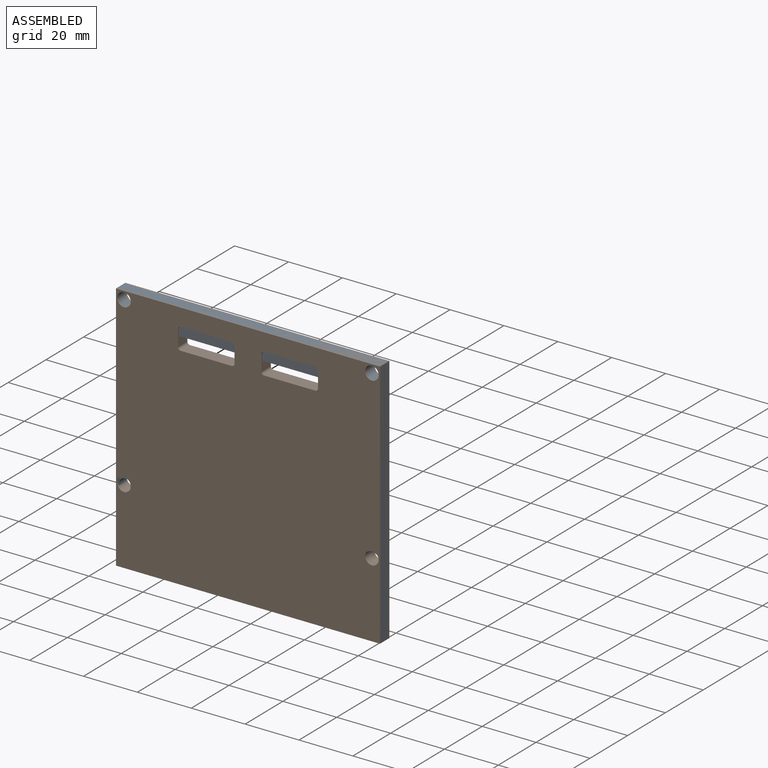
[diagram: assembled view]
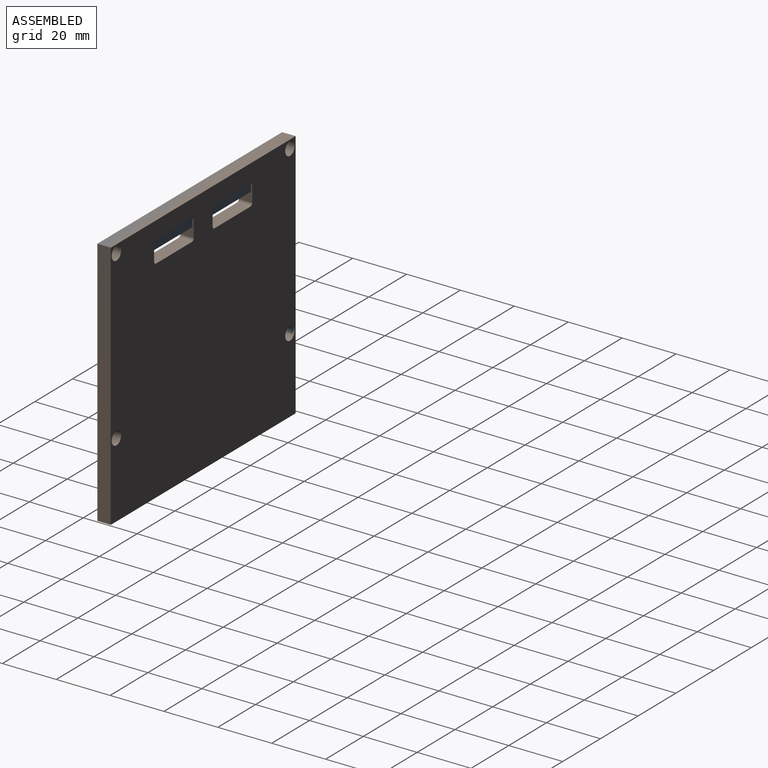
[diagram: assembled view, second angle]
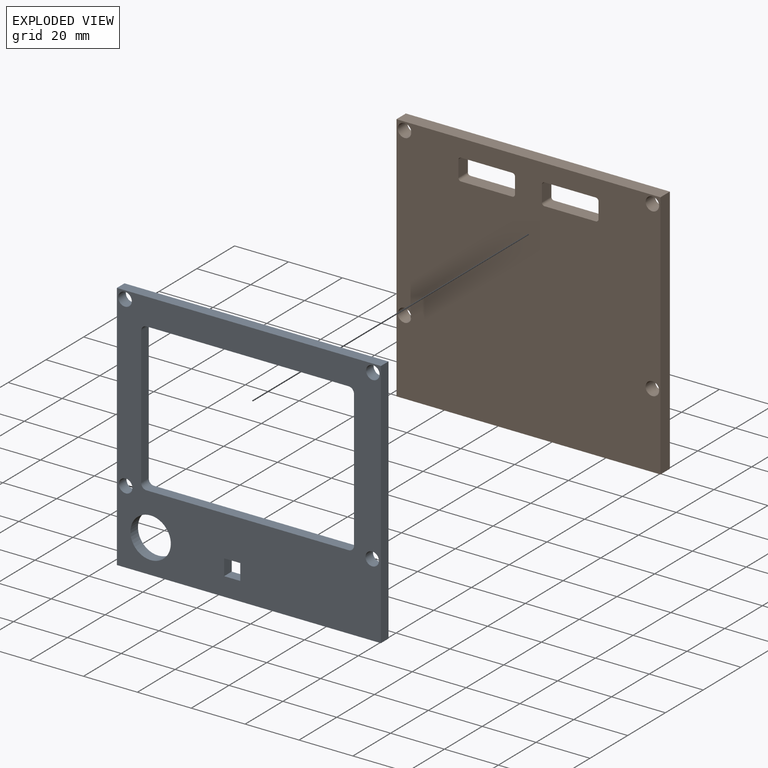
[diagram: exploded view]
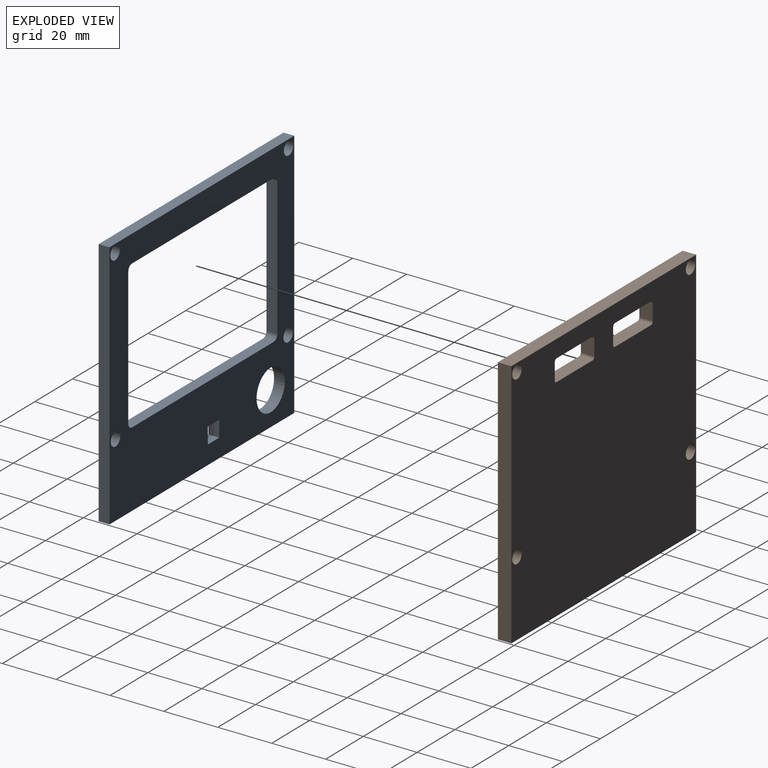
[diagram: exploded view, second angle]
ASSEMBLY  parts=2 mates=2
PART A: 23 faces, bbox 98x4x93 mm
  f0: plane 98x93mm, normal (0,-1,0), area 4481.2mm2, adj f2,f3,f4,f5,f6,f7,f8,f9
  f1: plane 98x93mm, normal (0,1,0), area 4481.2mm2, adj f2,f3,f4,f5,f6,f7,f8,f9
  f2: plane 98x4mm, normal (0,0,1), area 392mm2, adj f0,f1,f3,f5
  f3: plane 93x4mm, normal (-1,0,0), area 372mm2, adj f0,f1,f2,f4
  f4: plane 98x4mm, normal (0,0,-1), area 392mm2, adj f0,f1,f3,f5
  f5: plane 93x4mm, normal (1,0,0), area 372mm2, adj f0,f1,f2,f4
  f6: cylinder r=2.5mm len=5mm, axis (0,1,0), area 62.8mm2, adj f0,f1
  f7: cylinder r=2.5mm len=5mm, axis (0,1,0), area 62.8mm2, adj f0,f1
  f8: plane 75x4mm, normal (0,0,-1), area 300mm2, adj f0,f1,f17,f20
  f9: plane 51x4mm, normal (-1,0,0), area 204mm2, adj f0,f1,f17,f18
  f10: plane 75x4mm, normal (0,0,1), area 300mm2, adj f0,f1,f18,f19
  f11: plane 51x4mm, normal (1,0,0), area 204mm2, adj f0,f1,f19,f20
  f12: cylinder r=7.5mm len=15mm, axis (0,1,0), area 188.5mm2, adj f0,f1
  f13: plane 6x4mm, normal (1,0,0), area 24mm2, adj f0,f1,f14,f16
  f14: plane 6x4mm, normal (0,0,1), area 24mm2, adj f0,f1,f13,f15
  f15: plane 6x4mm, normal (-1,0,0), area 24mm2, adj f0,f1,f14,f16
  f16: plane 6x4mm, normal (0,0,-1), area 24mm2, adj f0,f1,f13,f15
  f17: cylinder r=2mm len=4mm, axis (0,1,0), area 12.6mm2, adj f0,f1,f8,f9
  f18: cylinder r=2mm len=4mm, axis (0,-1,0), area 12.6mm2, adj f0,f1,f9,f10
  f19: cylinder r=2mm len=4mm, axis (0,-1,0), area 12.6mm2, adj f0,f1,f10,f11
  f20: cylinder r=2mm len=4mm, axis (0,1,0), area 12.6mm2, adj f0,f1,f8,f11
  f21: cylinder r=2.5mm len=5mm, axis (0,1,0), area 62.8mm2, adj f0,f1
  f22: cylinder r=2.5mm len=5mm, axis (0,1,0), area 62.8mm2, adj f0,f1
PART B: 26 faces, bbox 98x5x93 mm
  f0: plane 98x93mm, normal (0,-1,0), area 8701.2mm2, adj f2,f3,f4,f5,f6,f7,f8,f9
  f1: plane 98x93mm, normal (0,1,0), area 8701.2mm2, adj f2,f3,f4,f5,f6,f7,f8,f9
  f2: plane 98x5mm, normal (0,0,1), area 490mm2, adj f0,f1,f3,f5
  f3: plane 93x5mm, normal (-1,0,0), area 465mm2, adj f0,f1,f2,f4
  f4: plane 98x5mm, normal (0,0,-1), area 490mm2, adj f0,f1,f3,f5
  f5: plane 93x5mm, normal (1,0,0), area 465mm2, adj f0,f1,f2,f4
  f6: plane 19x5mm, normal (0,0,-1), area 95mm2, adj f0,f1,f16,f19
  f7: plane 6x5mm, normal (1,0,0), area 30mm2, adj f0,f1,f16,f17
  f8: plane 19x5mm, normal (0,0,1), area 95mm2, adj f0,f1,f17,f18
  f9: plane 6x5mm, normal (-1,0,0), area 30mm2, adj f0,f1,f18,f19
  f10: plane 6x5mm, normal (1,0,0), area 30mm2, adj f0,f1,f20,f23
  f11: plane 19x5mm, normal (0,0,1), area 95mm2, adj f0,f1,f22,f23
  f12: plane 6x5mm, normal (-1,0,0), area 30mm2, adj f0,f1,f21,f22
  f13: plane 19x5mm, normal (0,0,-1), area 95mm2, adj f0,f1,f20,f21
  f14: cylinder r=2.5mm len=5mm, axis (0,1,0), area 78.5mm2, adj f0,f1
  f15: cylinder r=2.5mm len=5mm, axis (0,1,0), area 78.5mm2, adj f0,f1
  f16: cylinder r=1mm len=5mm, axis (0,-1,0), area 7.9mm2, adj f0,f1,f6,f7
  f17: cylinder r=1mm len=5mm, axis (0,-1,0), area 7.9mm2, adj f0,f1,f7,f8
  f18: cylinder r=1mm len=5mm, axis (0,1,0), area 7.9mm2, adj f0,f1,f8,f9
  f19: cylinder r=1mm len=5mm, axis (0,1,0), area 7.9mm2, adj f0,f1,f6,f9
  f20: cylinder r=1mm len=5mm, axis (0,1,0), area 7.9mm2, adj f0,f1,f10,f13
  f21: cylinder r=1mm len=5mm, axis (0,-1,0), area 7.9mm2, adj f0,f1,f12,f13
  f22: cylinder r=1mm len=5mm, axis (0,-1,0), area 7.9mm2, adj f0,f1,f11,f12
  f23: cylinder r=1mm len=5mm, axis (0,1,0), area 7.9mm2, adj f0,f1,f10,f11
  f24: cylinder r=2.5mm len=5mm, axis (0,-1,0), area 78.5mm2, adj f0,f1
  f25: cylinder r=2.5mm len=5mm, axis (0,-1,0), area 78.5mm2, adj f0,f1
PLACE A t=(-26.07,69.8,1.59)mm
PLACE B t=(-26.07,69.8,1.59)mm
MATE parallel B.f1 <-> A.f0  axis (0,1,0) through (-26.07,72.3,0.09)mm
MATE planar B.f2 <-> A.f2  axis (0,0,1) through (-26.07,69.8,48.09)mm
